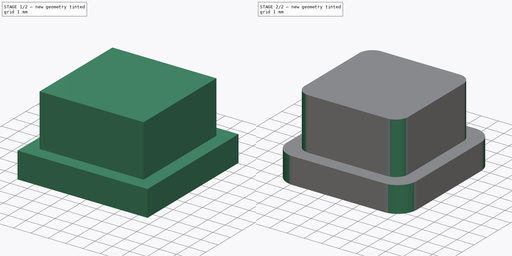
[diagram: build sequence overview — one tinted view per stage of 2, left to right]
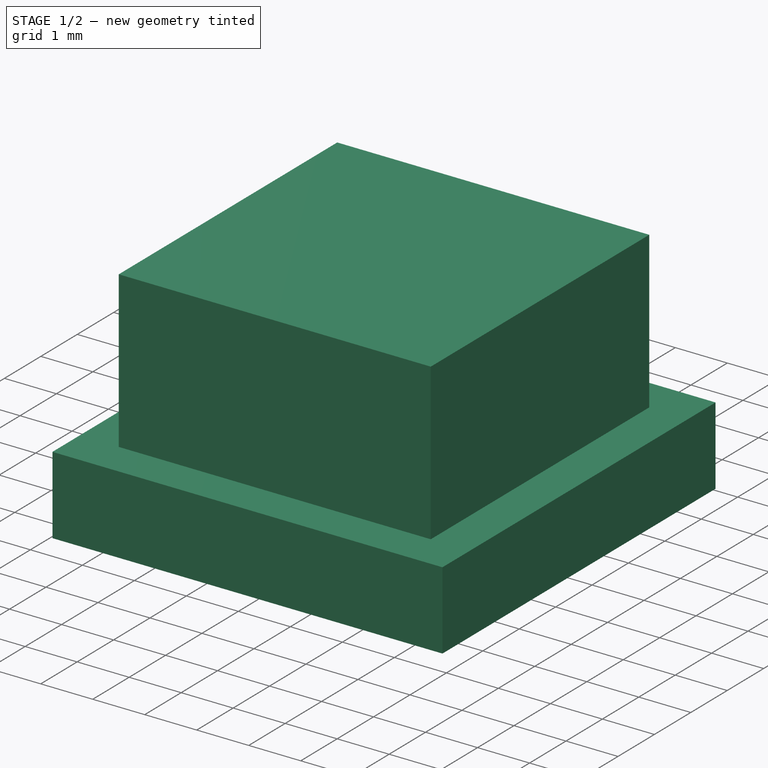
[diagram: stage 1 of 2 — iso view after this stage's code; geometry added in this stage tinted green]
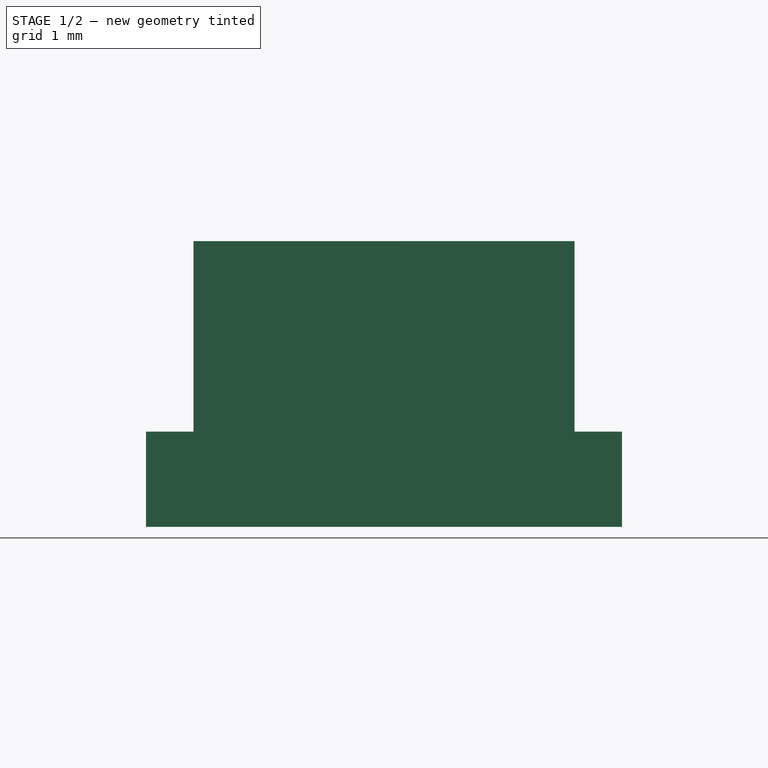
[diagram: stage 1 of 2 — front view after this stage's code; geometry added in this stage tinted green]
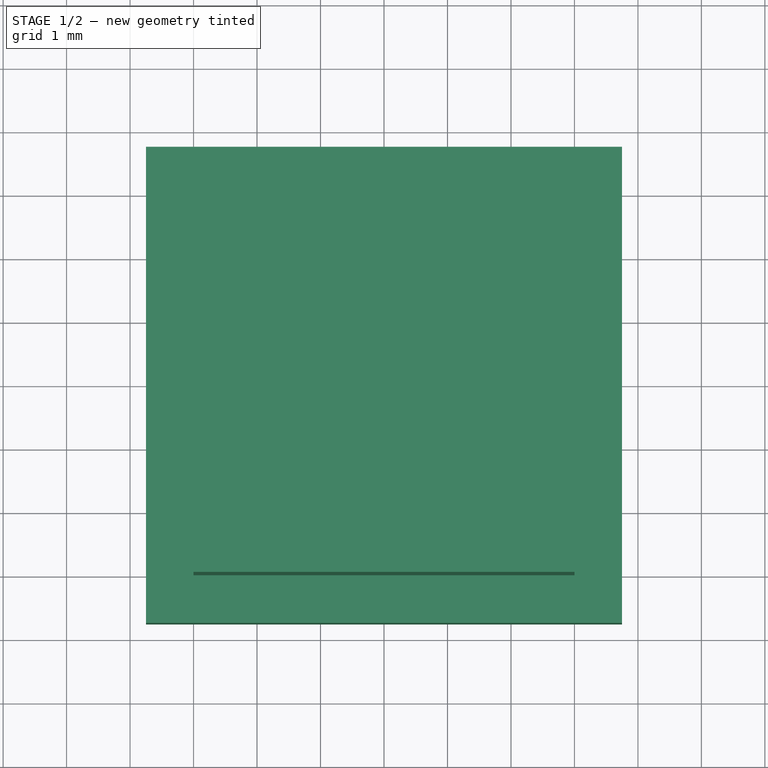
[diagram: stage 1 of 2 — top view after this stage's code; geometry added in this stage tinted green]
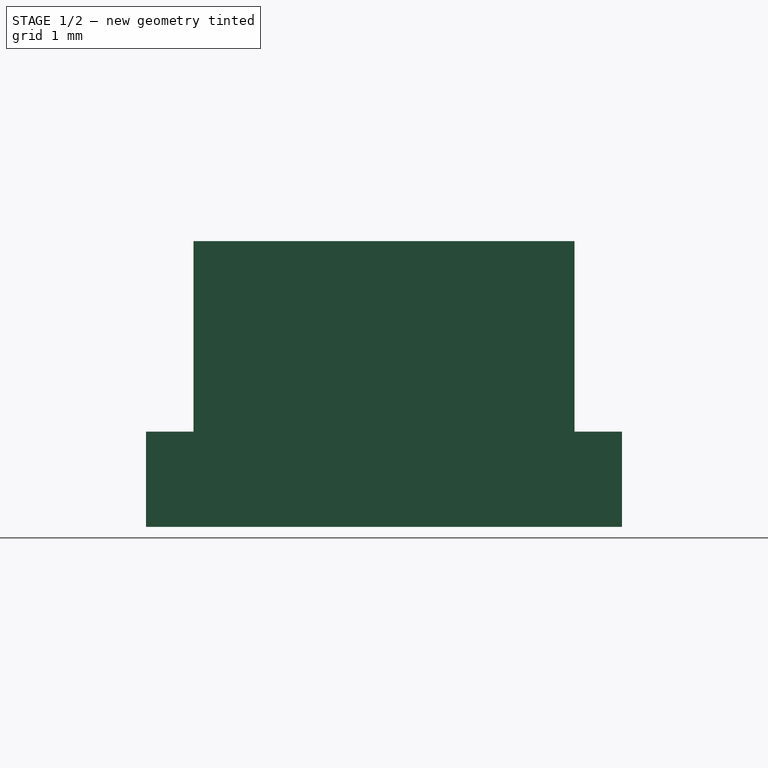
[diagram: stage 1 of 2 — right view after this stage's code; geometry added in this stage tinted green]
FCSTD DOCUMENT  (FreeCAD 0.18R15417 (Git))
Label: bneckbuttons
License: All rights reserved
LicenseURL: http://en.wikipedia.org/wiki/All_rights_reserved
objects: Sketcher::SketchObject×2, PartDesign::Pad×2, PartDesign::Fillet×2, PartDesign::Body×1
note: 9 computed .brp shape members not serialized (recipe doc carries the construction recipe); baked Part::Feature solids carry a one-line shape summary decoded from their .brp

FEATURE [Sketcher::SketchObject] Sketch  label="Toucharea"
  MapMode = 5
  Support = -> [XY_Plane]
  sketch-geometry (4):
    g0: LineSegment StartX=-3 StartY=3 StartZ=0 EndX=3 EndY=3 EndZ=0
    g1: LineSegment StartX=3 StartY=3 StartZ=0 EndX=3 EndY=-3 EndZ=0
    g2: LineSegment StartX=3 StartY=-3 StartZ=0 EndX=-3 EndY=-3 EndZ=0
    g3: LineSegment StartX=-3 StartY=-3 StartZ=0 EndX=-3 EndY=3 EndZ=0
  constraints (10):
    c: Coincident(g0,g1)
    c: Coincident(g1,g2)
    c: Coincident(g2,g3)
    c: Coincident(g3,g0)
    c: Horizontal(g2)
    c: Vertical(g1)
    c: DistanceY(g1,g0) = 6
    c: DistanceX(g2,g1) = 6
    c: Symmetric(g0,g0,g-2)
    c: Symmetric(g0,g2,g-1)
FEATURE [Sketcher::SketchObject] Sketch001  label="Basestop"
  MapMode = 5
  Support = -> [XY_Plane]
  sketch-geometry (4):
    g0: LineSegment StartX=-3.75 StartY=3.75 StartZ=0 EndX=3.75 EndY=3.75 EndZ=0
    g1: LineSegment StartX=3.75 StartY=3.75 StartZ=0 EndX=3.75 EndY=-3.75 EndZ=0
    g2: LineSegment StartX=3.75 StartY=-3.75 StartZ=0 EndX=-3.75 EndY=-3.75 EndZ=0
    g3: LineSegment StartX=-3.75 StartY=-3.75 StartZ=0 EndX=-3.75 EndY=3.75 EndZ=0
  constraints (10):
    c: Coincident(g0,g1)
    c: Coincident(g1,g2)
    c: Coincident(g2,g3)
    c: Coincident(g3,g0)
    c: Horizontal(g2)
    c: Vertical(g1)
    c: DistanceY(g1,g0) = 7.5
    c: DistanceX(g2,g1) = 7.5
    c: Symmetric(g0,g0,g-2)
    c: Symmetric(g0,g2,g-1)
FEATURE [PartDesign::Pad] Pad  label="Touchpad"
  Length = 3
  Length2 = 100
  Profile = -> Sketch
  Type = 0
FEATURE [PartDesign::Pad] Pad001  label="Basepad"
  BaseFeature = -> Pad
  Length = 1.5
  Length2 = 100
  Profile = -> Sketch001
  Reversed = true
  Type = 0
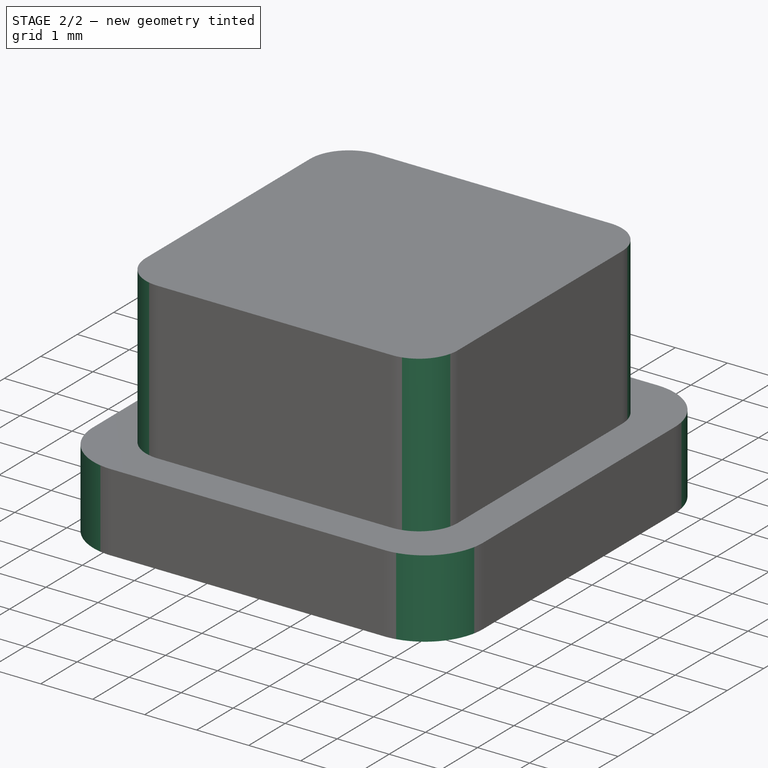
[diagram: stage 2 of 2 — iso view after this stage's code; geometry added in this stage tinted green]
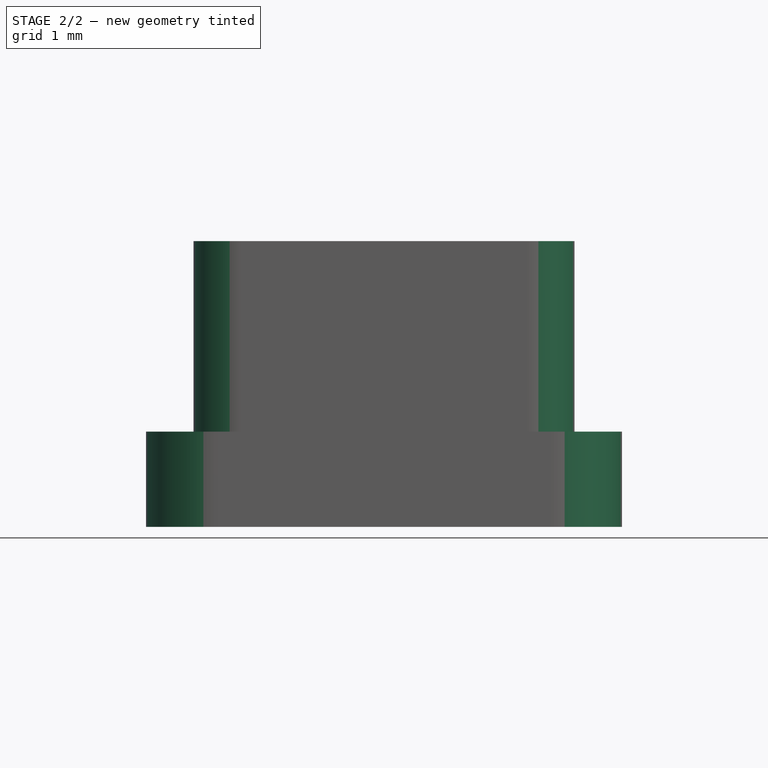
[diagram: stage 2 of 2 — front view after this stage's code; geometry added in this stage tinted green]
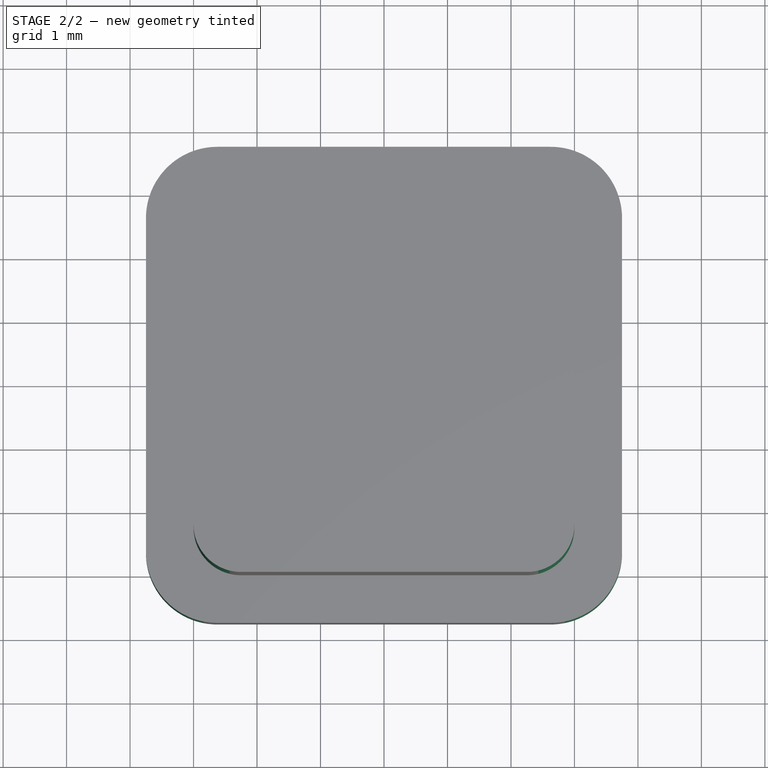
[diagram: stage 2 of 2 — top view after this stage's code; geometry added in this stage tinted green]
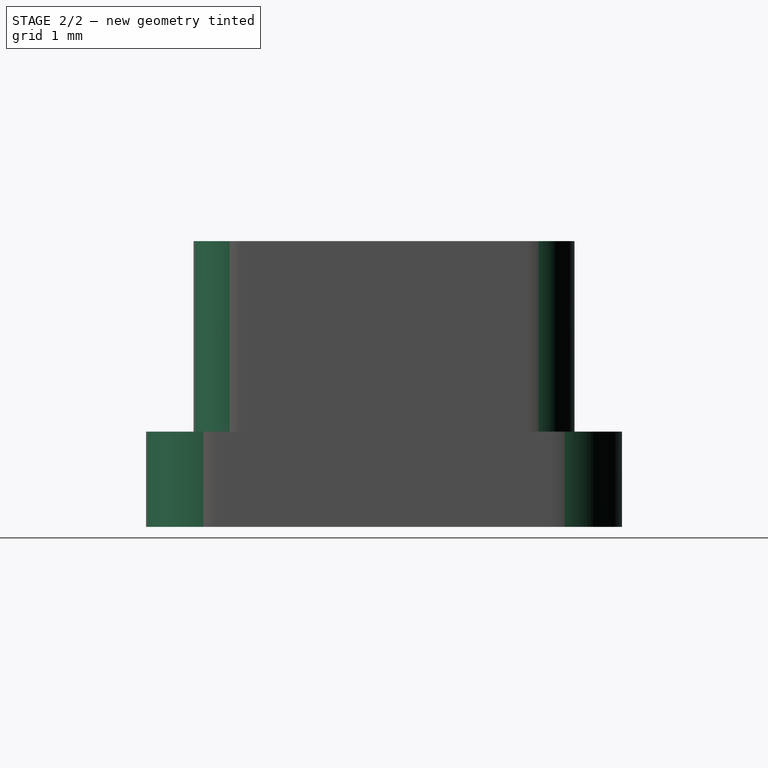
[diagram: stage 2 of 2 — right view after this stage's code; geometry added in this stage tinted green]
FEATURE [PartDesign::Fillet] Fillet
  Base = -> Pad001 [Edge22,Edge18,Edge17,Edge20]
  BaseFeature = -> Pad001
  Radius = 1.125
FEATURE [PartDesign::Fillet] Fillet001
  Base = -> Fillet [Edge33,Edge31,Edge29,Edge35]
  BaseFeature = -> Fillet
  Radius = 0.75
FEATURE [PartDesign::Body] Body
  Group = -> [Sketch,Sketch001,Pad,Pad001,Fillet,Fillet001]
  Origin = -> Origin
  Tip = -> Fillet001
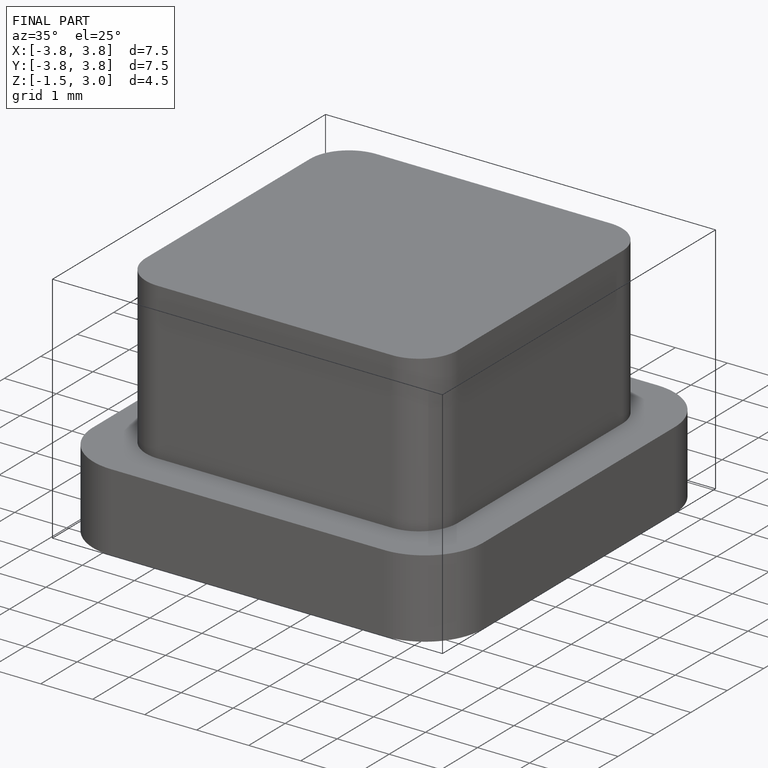
[diagram: finished part — iso view with bounding-box wireframe]
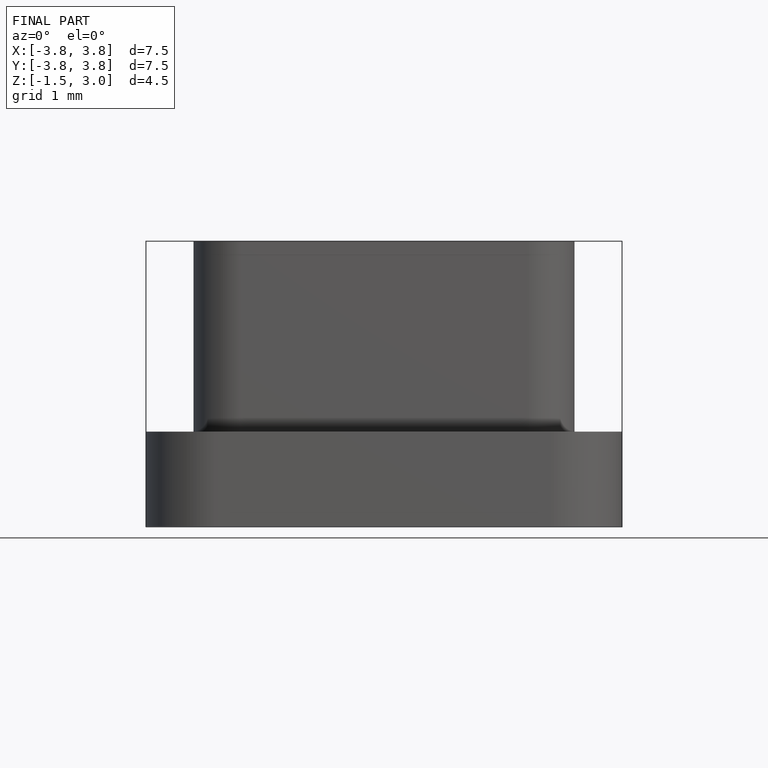
[diagram: finished part — front view with bounding-box wireframe]
